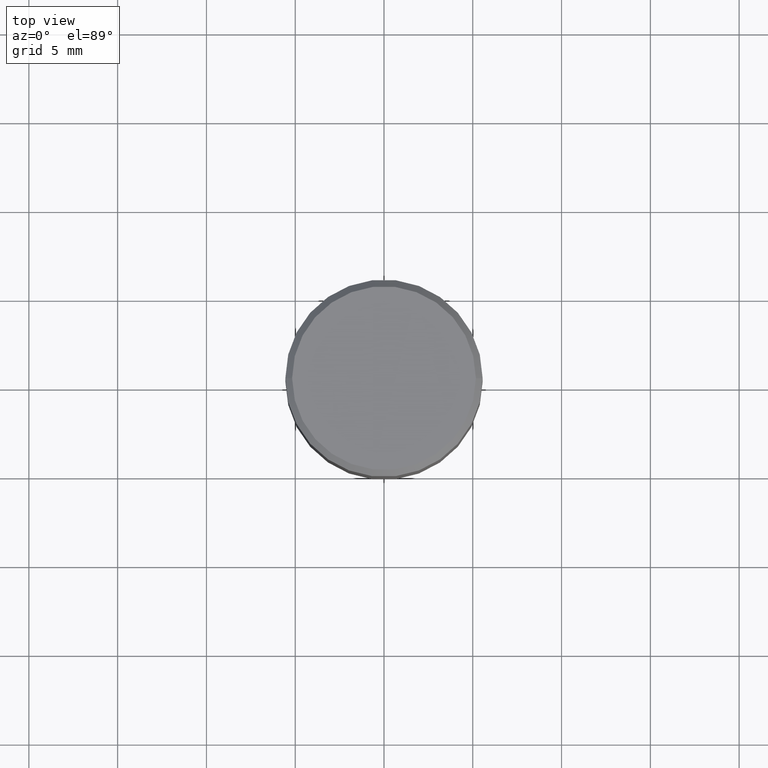
[diagram: clean part render]
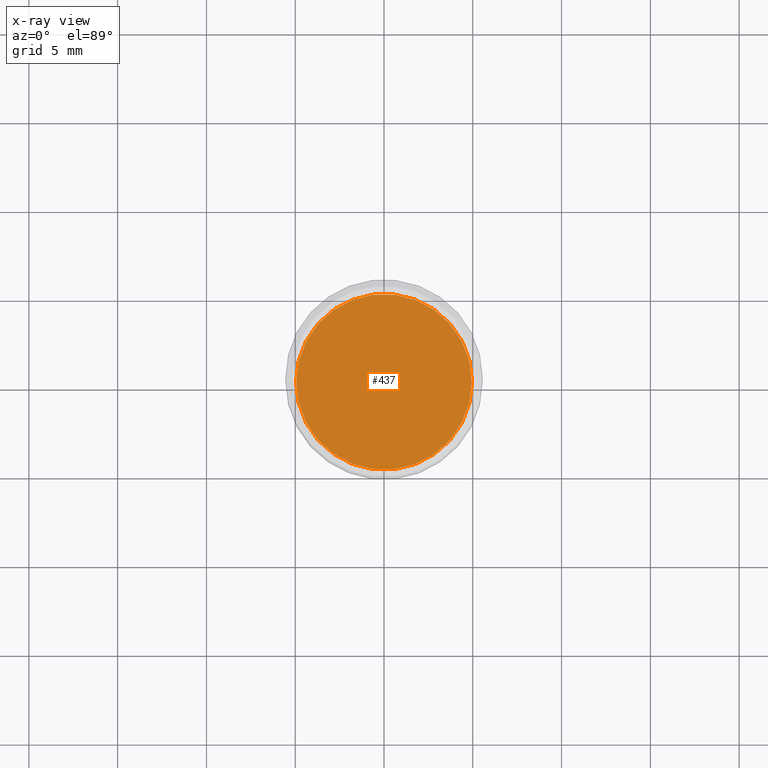
[diagram: x-ray — body ghosted, one internal face saturated and labeled with its STEP entity id]
A machine part, top view, then the same camera in x-ray: the body is ghosted and one INTERNAL B-rep face — a face not visible from any outside direction — is saturated and labeled: STEP entity #437.
In plain terms, the highlighted planar face has unit normal (-0, 0, 1).
Its self-contained STEP definition (entity closure, byte-faithful):
#34 = DIRECTION ( 'NONE',  ( -2.445468806185136597E-29, 3.491481338843145583E-15, 1.000000000000000000 ) ) ;
#96 = CARTESIAN_POINT ( 'NONE',  ( 0.1948000000000000009, -3.106021799034858268E-15, -0.5000000000000001110 ) ) ;
#98 = AXIS2_PLACEMENT_3D ( 'NONE', #220, #282, #252 ) ;
#154 = FACE_OUTER_BOUND ( 'NONE', #317, .T. ) ;
#164 = EDGE_CURVE ( 'NONE', #332, #283, #392, .T. ) ;
#185 = EDGE_CURVE ( 'NONE', #283, #332, #222, .T. ) ;
#202 = AXIS2_PLACEMENT_3D ( 'NONE', #461, #429, #281 ) ;
#217 = PLANE ( 'NONE',  #202 ) ;
#220 = CARTESIAN_POINT ( 'NONE',  ( 1.222734403092568719E-29, -1.745740669421573186E-15, -0.5000000000000001110 ) ) ;
#222 = CIRCLE ( 'NONE', #366, 0.1948000000000000009 ) ;
#250 = CARTESIAN_POINT ( 'NONE',  ( 1.222734403092568719E-29, -1.745740669421573186E-15, -0.5000000000000001110 ) ) ;
#252 = DIRECTION ( 'NONE',  ( 1.000000000000000000, -6.982962677686267499E-15, 0.000000000000000000 ) ) ;
#281 = DIRECTION ( 'NONE',  ( 1.000000000000000000, -6.982962677686265922E-15, 4.876176775795935793E-29 ) ) ;
#282 = DIRECTION ( 'NONE',  ( -2.445468806185136597E-29, 3.491481338843145583E-15, 1.000000000000000000 ) ) ;
#283 = VERTEX_POINT ( 'NONE', #353 ) ;
#298 = ORIENTED_EDGE ( 'NONE', *, *, #164, .F. ) ;
#317 = EDGE_LOOP ( 'NONE', ( #298, #337 ) ) ;
#332 = VERTEX_POINT ( 'NONE', #96 ) ;
#337 = ORIENTED_EDGE ( 'NONE', *, *, #185, .F. ) ;
#353 = CARTESIAN_POINT ( 'NONE',  ( -0.1948000000000000009, -3.589541929867870625E-16, -0.5000000000000001110 ) ) ;
#366 = AXIS2_PLACEMENT_3D ( 'NONE', #250, #34, #398 ) ;
#392 = CIRCLE ( 'NONE', #98, 0.1948000000000000009 ) ;
#398 = DIRECTION ( 'NONE',  ( 1.000000000000000000, -6.982962677686267499E-15, 0.000000000000000000 ) ) ;
#429 = DIRECTION ( 'NONE',  ( -2.438088387897960049E-29, 3.491481338843145188E-15, 1.000000000000000000 ) ) ;
#437 = ADVANCED_FACE ( 'NONE', ( #154 ), #217, .F. ) ;
#461 = CARTESIAN_POINT ( 'NONE',  ( 1.222734403092568719E-29, -1.745740669421573186E-15, -0.5000000000000001110 ) ) ;